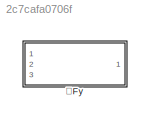
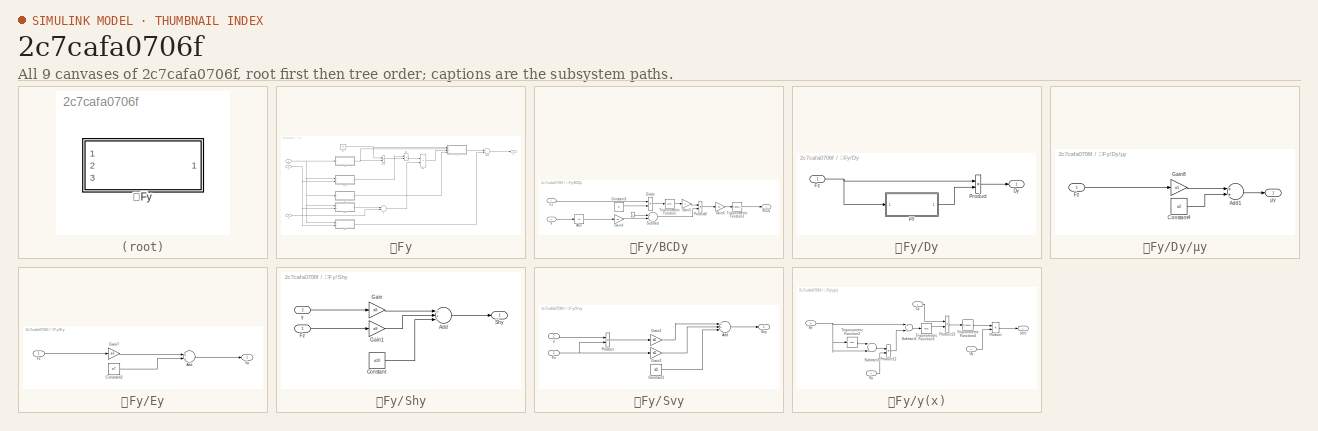
[diagram: thumbnail index - all 9 canvases of the model, root first then tree order]
MODEL slx_2c7cafa0706f
KIND model
CONFIG AbsTol = auto
CONFIG EnableMultiTasking = off
CONFIG FixedStep = auto
CONFIG MaxStep = auto
CONFIG MinStep = auto
CONFIG RelTol = 1e-3
CONFIG SampleTimeConstraint = Unconstrained
CONFIG Solver = VariableStepAuto
CONFIG SolverName = VariableStepAuto
CONFIG StartTime = 0.0
CONFIG StopTime = 10.0
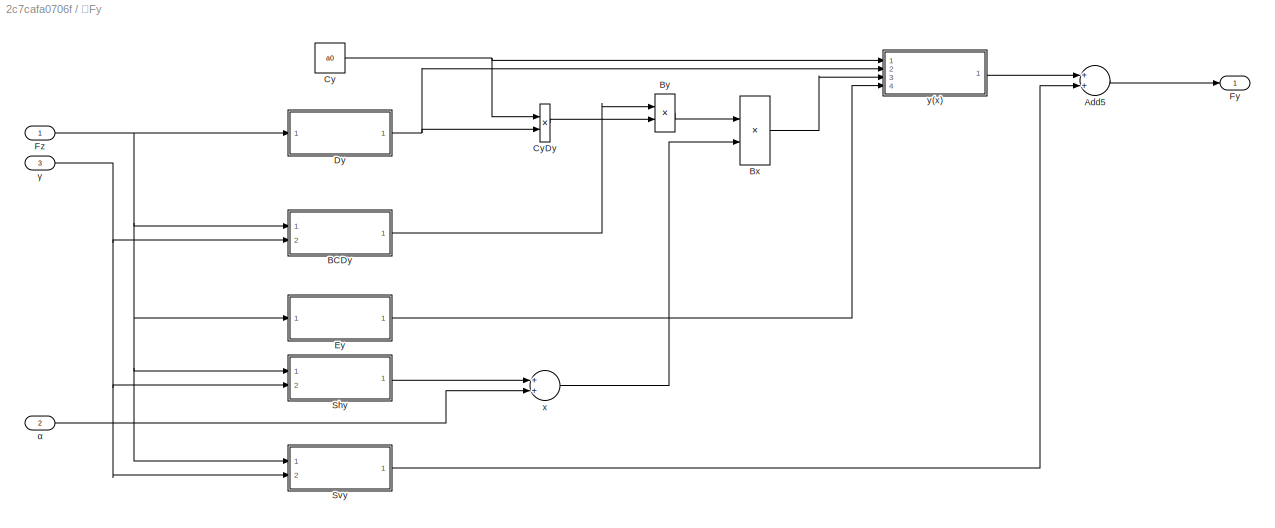
BLOCK [SubSystem] 純Fy
  Ports = [3, 1]
  RequestExecContextInheritance = off
BLOCK [Sum] 純Fy/Add5
  InputSameDT = off
  OutDataTypeStr = Inherit: Inherit via internal rule
  Ports = [2, 1]
  SaturateOnIntegerOverflow = off
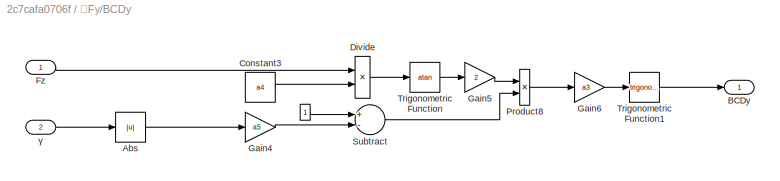
BLOCK [SubSystem] 純Fy/BCDy
  Ports = [2, 1]
  RequestExecContextInheritance = off
BLOCK [Constant] 純Fy/BCDy/ 
BLOCK [Abs] 純Fy/BCDy/Abs
  SaturateOnIntegerOverflow = off
BLOCK [Outport] 純Fy/BCDy/BCDy
  IconDisplay = Port number
BLOCK [Constant] 純Fy/BCDy/Constant3
  Value = a4
BLOCK [Product] 純Fy/BCDy/Divide
  InputSameDT = off
  Inputs = */
  OutDataTypeStr = Inherit: Inherit via internal rule
  Ports = [2, 1]
  RndMeth = Floor
  SaturateOnIntegerOverflow = off
BLOCK [Inport] 純Fy/BCDy/Fz
  IconDisplay = Port number
BLOCK [Gain] 純Fy/BCDy/Gain4
  Gain = a5
  OutDataTypeStr = Inherit: Inherit via internal rule
  ParamDataTypeStr = Inherit: Inherit via internal rule
  SaturateOnIntegerOverflow = off
BLOCK [Gain] 純Fy/BCDy/Gain5
  Gain = 2
  OutDataTypeStr = Inherit: Inherit via internal rule
  ParamDataTypeStr = Inherit: Inherit via internal rule
  SaturateOnIntegerOverflow = off
BLOCK [Gain] 純Fy/BCDy/Gain6
  Gain = a3
  OutDataTypeStr = Inherit: Inherit via internal rule
  ParamDataTypeStr = Inherit: Inherit via internal rule
  SaturateOnIntegerOverflow = off
BLOCK [Product] 純Fy/BCDy/Product8
  InputSameDT = off
  OutDataTypeStr = Inherit: Inherit via internal rule
  Ports = [2, 1]
  RndMeth = Floor
  SaturateOnIntegerOverflow = off
BLOCK [Sum] 純Fy/BCDy/Subtract
  InputSameDT = off
  Inputs = +-
  OutDataTypeStr = Inherit: Inherit via internal rule
  Ports = [2, 1]
  SaturateOnIntegerOverflow = off
BLOCK [Trigonometry] 純Fy/BCDy/Trigonometric Function
  Operator = atan
  Ports = [1, 1]
BLOCK [Trigonometry] 純Fy/BCDy/Trigonometric Function1
  Ports = [1, 1]
BLOCK [Inport] 純Fy/BCDy/γ
  IconDisplay = Port number
  Port = 2
BLOCK [Product] 純Fy/Bx
  InputSameDT = off
  OutDataTypeStr = Inherit: Inherit via internal rule
  Ports = [2, 1]
  RndMeth = Floor
  SaturateOnIntegerOverflow = off
BLOCK [Product] 純Fy/By
  InputSameDT = off
  Inputs = */
  OutDataTypeStr = Inherit: Inherit via internal rule
  Ports = [2, 1]
  RndMeth = Floor
  SaturateOnIntegerOverflow = off
BLOCK [Constant] 純Fy/Cy
  Value = a0
BLOCK [Product] 純Fy/CyDy
  InputSameDT = off
  OutDataTypeStr = Inherit: Inherit via internal rule
  Ports = [2, 1]
  RndMeth = Floor
  SaturateOnIntegerOverflow = off
BLOCK [SubSystem] 純Fy/Dy
  Ports = [1, 1]
  RequestExecContextInheritance = off
BLOCK [Outport] 純Fy/Dy/Dy
  IconDisplay = Port number
BLOCK [Inport] 純Fy/Dy/Fz
  IconDisplay = Port number
BLOCK [Product] 純Fy/Dy/Product
  InputSameDT = off
  OutDataTypeStr = Inherit: Inherit via internal rule
  Ports = [2, 1]
  RndMeth = Floor
  SaturateOnIntegerOverflow = off
BLOCK [SubSystem] 純Fy/Dy/μy
  Ports = [1, 1]
  RequestExecContextInheritance = off
BLOCK [Sum] 純Fy/Dy/μy/Add1
  InputSameDT = off
  OutDataTypeStr = Inherit: Inherit via internal rule
  Ports = [2, 1]
  SaturateOnIntegerOverflow = off
BLOCK [Constant] 純Fy/Dy/μy/Constant4
  Value = a2
BLOCK [Inport] 純Fy/Dy/μy/Fz
  IconDisplay = Port number
BLOCK [Gain] 純Fy/Dy/μy/Gain8
  Gain = a1
  OutDataTypeStr = Inherit: Inherit via internal rule
  ParamDataTypeStr = Inherit: Inherit via internal rule
  SaturateOnIntegerOverflow = off
BLOCK [Outport] 純Fy/Dy/μy/μy
  IconDisplay = Port number
BLOCK [SubSystem] 純Fy/Ey
  Ports = [1, 1]
  RequestExecContextInheritance = off
BLOCK [Sum] 純Fy/Ey/Add
  InputSameDT = off
  OutDataTypeStr = Inherit: Inherit via internal rule
  Ports = [2, 1]
  SaturateOnIntegerOverflow = off
BLOCK [Constant] 純Fy/Ey/Constant2
  Value = a7
BLOCK [Outport] 純Fy/Ey/Ey
  IconDisplay = Port number
BLOCK [Inport] 純Fy/Ey/Fz
  IconDisplay = Port number
BLOCK [Gain] 純Fy/Ey/Gain7
  Gain = a6
  OutDataTypeStr = Inherit: Inherit via internal rule
  ParamDataTypeStr = Inherit: Inherit via internal rule
  SaturateOnIntegerOverflow = off
BLOCK [Outport] 純Fy/Fy
  IconDisplay = Port number
  VectorParamsAs1DForOutWhenUnconnected = off
BLOCK [Inport] 純Fy/Fz
  IconDisplay = Port number
BLOCK [SubSystem] 純Fy/Shy
  Ports = [2, 1]
  RequestExecContextInheritance = off
BLOCK [Sum] 純Fy/Shy/Add
  InputSameDT = off
  Inputs = +++
  OutDataTypeStr = Inherit: Inherit via internal rule
  Ports = [3, 1]
  SaturateOnIntegerOverflow = off
BLOCK [Constant] 純Fy/Shy/Constant
  Value = a10
BLOCK [Inport] 純Fy/Shy/Fz
  IconDisplay = Port number
BLOCK [Gain] 純Fy/Shy/Gain
  Gain = a8
  OutDataTypeStr = Inherit: Inherit via internal rule
  ParamDataTypeStr = Inherit: Inherit via internal rule
  SaturateOnIntegerOverflow = off
BLOCK [Gain] 純Fy/Shy/Gain1
  Gain = a9
  OutDataTypeStr = Inherit: Inherit via internal rule
  ParamDataTypeStr = Inherit: Inherit via internal rule
  SaturateOnIntegerOverflow = off
BLOCK [Outport] 純Fy/Shy/Shy
  IconDisplay = Port number
BLOCK [Inport] 純Fy/Shy/γ
  IconDisplay = Port number
  Port = 2
BLOCK [SubSystem] 純Fy/Svy
  Ports = [2, 1]
  RequestExecContextInheritance = off
BLOCK [Sum] 純Fy/Svy/Add
  InputSameDT = off
  Inputs = +++
  OutDataTypeStr = Inherit: Inherit via internal rule
  Ports = [3, 1]
  SaturateOnIntegerOverflow = off
BLOCK [Constant] 純Fy/Svy/Constant1
  Value = a13
BLOCK [Inport] 純Fy/Svy/Fz
  IconDisplay = Port number
BLOCK [Gain] 純Fy/Svy/Gain2
  Gain = a11
  OutDataTypeStr = Inherit: Inherit via internal rule
  ParamDataTypeStr = Inherit: Inherit via internal rule
  SaturateOnIntegerOverflow = off
BLOCK [Gain] 純Fy/Svy/Gain3
  Gain = a12
  OutDataTypeStr = Inherit: Inherit via internal rule
  ParamDataTypeStr = Inherit: Inherit via internal rule
  SaturateOnIntegerOverflow = off
BLOCK [Product] 純Fy/Svy/Product
  InputSameDT = off
  OutDataTypeStr = Inherit: Inherit via internal rule
  Ports = [2, 1]
  RndMeth = Floor
  SaturateOnIntegerOverflow = off
BLOCK [Outport] 純Fy/Svy/Svy
  IconDisplay = Port number
BLOCK [Inport] 純Fy/Svy/γ
  IconDisplay = Port number
  Port = 2
BLOCK [Sum] 純Fy/x
  InputSameDT = off
  OutDataTypeStr = Inherit: Inherit via internal rule
  Ports = [2, 1]
  SaturateOnIntegerOverflow = off
BLOCK [SubSystem] 純Fy/y(x)
  Ports = [4, 1]
  RequestExecContextInheritance = off
BLOCK [Inport] 純Fy/y(x)/Bx
  IconDisplay = Port number
  Port = 3
BLOCK [Inport] 純Fy/y(x)/Cy
  IconDisplay = Port number
BLOCK [Inport] 純Fy/y(x)/Dy
  IconDisplay = Port number
  Port = 2
BLOCK [Inport] 純Fy/y(x)/Ey
  IconDisplay = Port number
  Port = 4
BLOCK [Product] 純Fy/y(x)/Product
  InputSameDT = off
  OutDataTypeStr = Inherit: Inherit via internal rule
  Ports = [2, 1]
  RndMeth = Floor
  SaturateOnIntegerOverflow = off
BLOCK [Product] 純Fy/y(x)/Product12
  InputSameDT = off
  OutDataTypeStr = Inherit: Inherit via internal rule
  Ports = [2, 1]
  RndMeth = Floor
  SaturateOnIntegerOverflow = off
BLOCK [Product] 純Fy/y(x)/Product13
  InputSameDT = off
  OutDataTypeStr = Inherit: Inherit via internal rule
  Ports = [2, 1]
  RndMeth = Floor
  SaturateOnIntegerOverflow = off
BLOCK [Sum] 純Fy/y(x)/Subtract1
  InputSameDT = off
  Inputs = +-
  OutDataTypeStr = Inherit: Inherit via internal rule
  Ports = [2, 1]
  SaturateOnIntegerOverflow = off
BLOCK [Sum] 純Fy/y(x)/Subtract3
  InputSameDT = off
  Inputs = -+
  OutDataTypeStr = Inherit: Inherit via internal rule
  Ports = [2, 1]
  SaturateOnIntegerOverflow = off
BLOCK [Trigonometry] 純Fy/y(x)/Trigonometric Function2
  Operator = atan
  Ports = [1, 1]
BLOCK [Trigonometry] 純Fy/y(x)/Trigonometric Function3
  Operator = atan
  Ports = [1, 1]
BLOCK [Trigonometry] 純Fy/y(x)/Trigonometric Function4
  Ports = [1, 1]
BLOCK [Outport] 純Fy/y(x)/y(x)
  IconDisplay = Port number
BLOCK [Inport] 純Fy/α
  IconDisplay = Port number
  Port = 2
BLOCK [Inport] 純Fy/γ
  IconDisplay = Port number
  Port = 3
LINE 純Fy/Add5:1 -> 純Fy/Fy:1
LINE 純Fy/BCDy/ :1 -> 純Fy/BCDy/Subtract:1
LINE 純Fy/BCDy/Abs:1 -> 純Fy/BCDy/Gain4:1
LINE 純Fy/BCDy/Constant3:1 -> 純Fy/BCDy/Divide:2
LINE 純Fy/BCDy/Divide:1 -> 純Fy/BCDy/Trigonometric Function:1
LINE 純Fy/BCDy/Fz:1 -> 純Fy/BCDy/Divide:1
LINE 純Fy/BCDy/Gain4:1 -> 純Fy/BCDy/Subtract:2
LINE 純Fy/BCDy/Gain5:1 -> 純Fy/BCDy/Product8:1
LINE 純Fy/BCDy/Gain6:1 -> 純Fy/BCDy/Trigonometric Function1:1
LINE 純Fy/BCDy/Product8:1 -> 純Fy/BCDy/Gain6:1
LINE 純Fy/BCDy/Subtract:1 -> 純Fy/BCDy/Product8:2
LINE 純Fy/BCDy/Trigonometric Function1:1 -> 純Fy/BCDy/BCDy:1
LINE 純Fy/BCDy/Trigonometric Function:1 -> 純Fy/BCDy/Gain5:1
LINE 純Fy/BCDy/γ:1 -> 純Fy/BCDy/Abs:1
LINE 純Fy/BCDy:1 -> 純Fy/By:1
LINE 純Fy/Bx:1 -> 純Fy/y(x):3
LINE 純Fy/By:1 -> 純Fy/Bx:1
NET 純Fy/Cy:1 -> 純Fy/CyDy:1, 純Fy/y(x):1
LINE 純Fy/CyDy:1 -> 純Fy/By:2
NET 純Fy/Dy/Fz:1 -> 純Fy/Dy/Product:1, 純Fy/Dy/μy:1
LINE 純Fy/Dy/Product:1 -> 純Fy/Dy/Dy:1
LINE 純Fy/Dy/μy/Add1:1 -> 純Fy/Dy/μy/μy:1
LINE 純Fy/Dy/μy/Constant4:1 -> 純Fy/Dy/μy/Add1:2
LINE 純Fy/Dy/μy/Fz:1 -> 純Fy/Dy/μy/Gain8:1
LINE 純Fy/Dy/μy/Gain8:1 -> 純Fy/Dy/μy/Add1:1
LINE 純Fy/Dy/μy:1 -> 純Fy/Dy/Product:2
NET 純Fy/Dy:1 -> 純Fy/CyDy:2, 純Fy/y(x):2
LINE 純Fy/Ey/Add:1 -> 純Fy/Ey/Ey:1
LINE 純Fy/Ey/Constant2:1 -> 純Fy/Ey/Add:2
LINE 純Fy/Ey/Fz:1 -> 純Fy/Ey/Gain7:1
LINE 純Fy/Ey/Gain7:1 -> 純Fy/Ey/Add:1
LINE 純Fy/Ey:1 -> 純Fy/y(x):4
NET 純Fy/Fz:1 -> 純Fy/BCDy:1, 純Fy/Dy:1, 純Fy/Ey:1, 純Fy/Shy:1, 純Fy/Svy:1
LINE 純Fy/Shy/Add:1 -> 純Fy/Shy/Shy:1
LINE 純Fy/Shy/Constant:1 -> 純Fy/Shy/Add:3
LINE 純Fy/Shy/Fz:1 -> 純Fy/Shy/Gain1:1
LINE 純Fy/Shy/Gain1:1 -> 純Fy/Shy/Add:2
LINE 純Fy/Shy/Gain:1 -> 純Fy/Shy/Add:1
LINE 純Fy/Shy/γ:1 -> 純Fy/Shy/Gain:1
LINE 純Fy/Shy:1 -> 純Fy/x:1
LINE 純Fy/Svy/Add:1 -> 純Fy/Svy/Svy:1
LINE 純Fy/Svy/Constant1:1 -> 純Fy/Svy/Add:3
NET 純Fy/Svy/Fz:1 -> 純Fy/Svy/Gain3:1, 純Fy/Svy/Product:2
LINE 純Fy/Svy/Gain2:1 -> 純Fy/Svy/Add:1
LINE 純Fy/Svy/Gain3:1 -> 純Fy/Svy/Add:2
LINE 純Fy/Svy/Product:1 -> 純Fy/Svy/Gain2:1
LINE 純Fy/Svy/γ:1 -> 純Fy/Svy/Product:1
LINE 純Fy/Svy:1 -> 純Fy/Add5:2
LINE 純Fy/x:1 -> 純Fy/Bx:2
NET 純Fy/y(x)/Bx:1 -> 純Fy/y(x)/Subtract1:1, 純Fy/y(x)/Subtract3:2, 純Fy/y(x)/Trigonometric Function2:1
LINE 純Fy/y(x)/Cy:1 -> 純Fy/y(x)/Product13:1
LINE 純Fy/y(x)/Dy:1 -> 純Fy/y(x)/Product:2
LINE 純Fy/y(x)/Ey:1 -> 純Fy/y(x)/Product12:2
LINE 純Fy/y(x)/Product12:1 -> 純Fy/y(x)/Subtract1:2
LINE 純Fy/y(x)/Product13:1 -> 純Fy/y(x)/Trigonometric Function4:1
LINE 純Fy/y(x)/Product:1 -> 純Fy/y(x)/y(x):1
LINE 純Fy/y(x)/Subtract1:1 -> 純Fy/y(x)/Trigonometric Function3:1
LINE 純Fy/y(x)/Subtract3:1 -> 純Fy/y(x)/Product12:1
LINE 純Fy/y(x)/Trigonometric Function2:1 -> 純Fy/y(x)/Subtract3:1
LINE 純Fy/y(x)/Trigonometric Function3:1 -> 純Fy/y(x)/Product13:2
LINE 純Fy/y(x)/Trigonometric Function4:1 -> 純Fy/y(x)/Product:1
LINE 純Fy/y(x):1 -> 純Fy/Add5:1
LINE 純Fy/α:1 -> 純Fy/x:2
NET 純Fy/γ:1 -> 純Fy/BCDy:2, 純Fy/Shy:2, 純Fy/Svy:2
note: NET lines group one-source signal fan-out (src -> all destinations, sorted); 1:1 wires keep LINE
